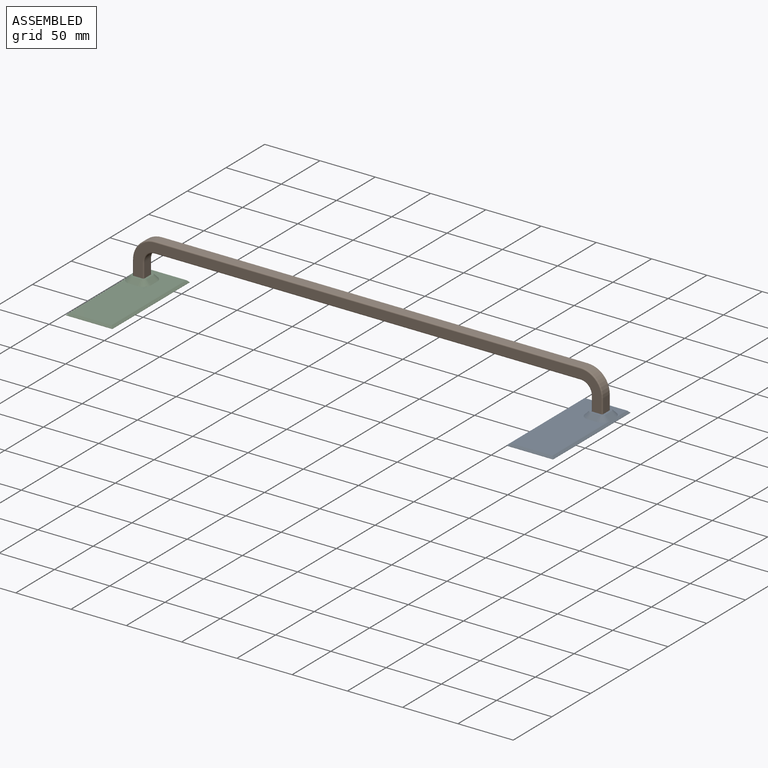
[diagram: assembled view]
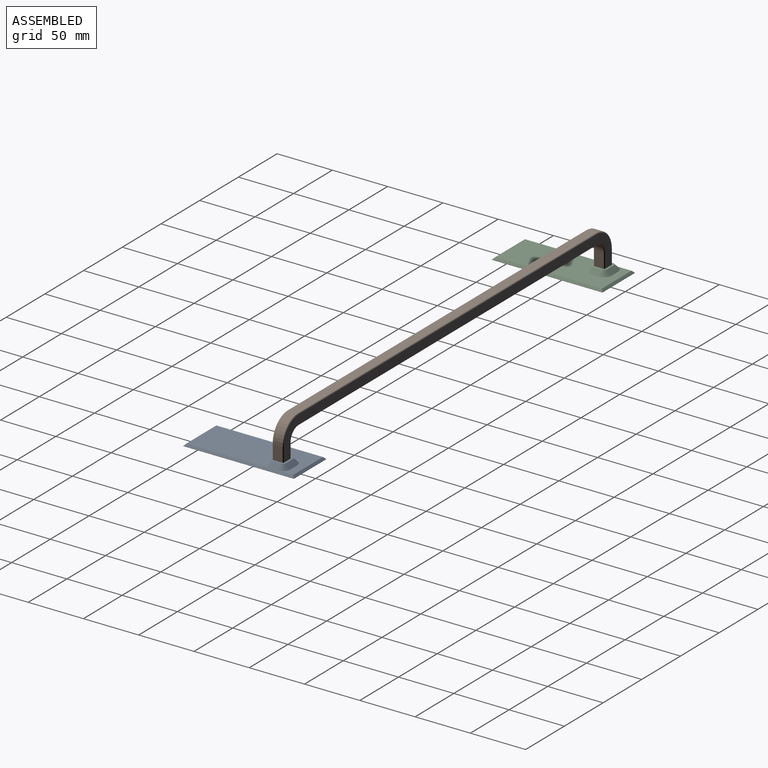
[diagram: assembled view, second angle]
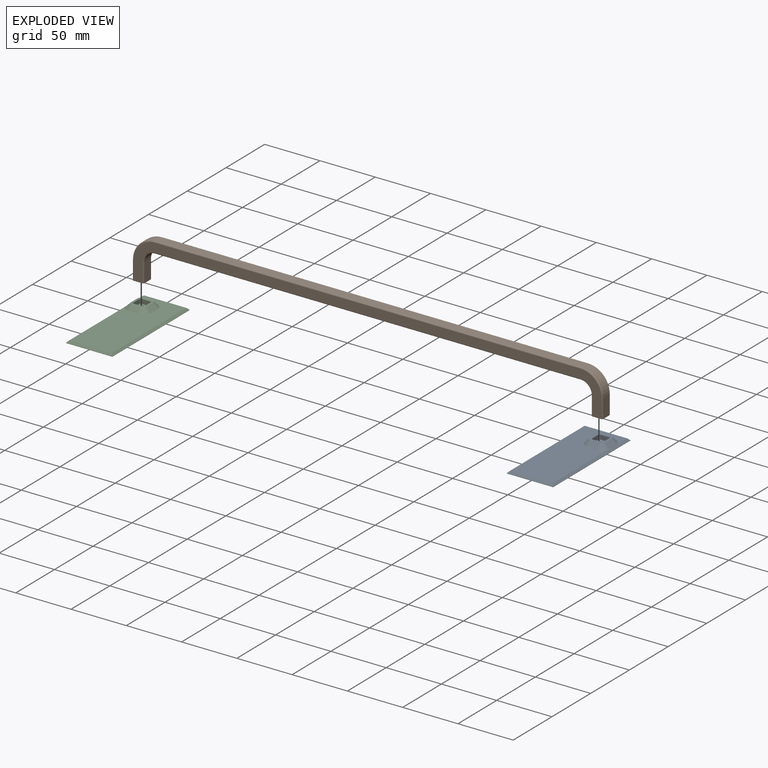
[diagram: exploded view]
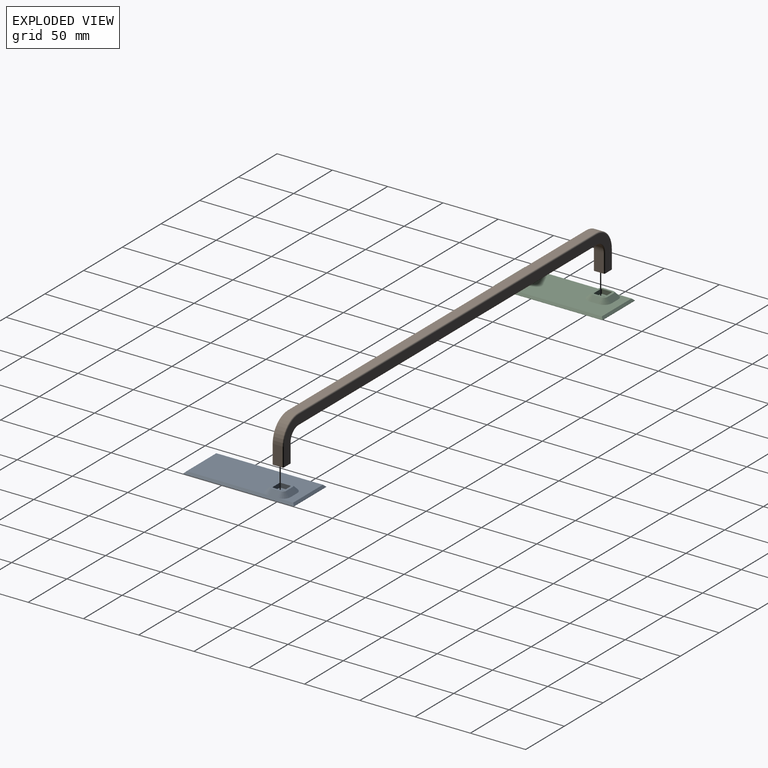
[diagram: exploded view, second angle]
ASSEMBLY  parts=3 mates=2
PART A: 28 faces, bbox 42x100x6 mm
  f0: plane 96.4x38.4mm, normal (0,0,1), area 3254.3mm2, adj f17,f18,f19,f20,f21,f22,f23,f24
  f1: plane 10.2x10.2mm, normal (0,0,1), area 87.2mm2, adj f7,f8,f9,f10,f11,f12,f13,f14
  f2: plane 42x0.2mm, normal (0,1,0), area 8.4mm2, adj f3,f5,f6,f25
  f3: plane 100x0.2mm, normal (1,0,0), area 20mm2, adj f2,f4,f6,f20
  f4: plane 42x0.2mm, normal (0,-1,0), area 8.4mm2, adj f3,f5,f6,f27
  f5: plane 100x0.2mm, normal (-1,0,0), area 20mm2, adj f2,f4,f6,f26
  f6: plane 100x42mm, normal (0,0,-1), area 4143.3mm2, adj f2,f3,f4,f5,f7
  f7: cone r=4.25mm half-angle=45deg, axis (0,0,-1), area 57.8mm2, adj f1,f6
  f8: cylinder r=1.05mm len=4mm, axis (0,0,-1), area 6.6mm2, adj f1,f9,f15,f16
  f9: plane 8.1x4mm, normal (-1,0,0), area 32.4mm2, adj f1,f8,f10,f16
  f10: cylinder r=1.05mm len=4mm, axis (0,0,-1), area 6.6mm2, adj f1,f9,f11,f16
  f11: plane 8.1x4mm, normal (0,-1,0), area 32.4mm2, adj f1,f10,f12,f16
  f12: cylinder r=1.05mm len=4mm, axis (0,0,-1), area 6.6mm2, adj f1,f11,f13,f16
  f13: plane 8.1x4mm, normal (1,0,0), area 32.4mm2, adj f1,f12,f14,f16
  f14: cylinder r=1.05mm len=4mm, axis (0,0,-1), area 6.6mm2, adj f1,f13,f15,f16
  f15: plane 8.1x4mm, normal (0,1,0), area 32.4mm2, adj f1,f8,f14,f16
  f16: plane 14.15x14.1mm, normal (0,0,1), area 88.7mm2, adj f8,f9,f10,f11,f12,f13,f14,f15
  f17: plane 8.15x4mm, normal (0,-0.71,0.71), area 46.1mm2, adj f0,f16,f18,f19
  f18: cone r=7mm half-angle=45deg, axis (0,0,-1), area 44.4mm2, adj f0,f16,f17,f20
  f19: cone r=7mm half-angle=45deg, axis (0,0,-1), area 44.4mm2, adj f0,f16,f17,f21
  f20: plane 100x5.8mm, normal (0.71,0,0.71), area 295.8mm2, adj f0,f3,f16,f18,f22,f25,f27
  f21: plane 8.1x4mm, normal (-0.71,0,0.71), area 45.8mm2, adj f0,f16,f19,f23
  f22: cone r=7mm half-angle=45deg, axis (0,0,-1), area 44.4mm2, adj f0,f16,f20,f24
  f23: cone r=7mm half-angle=45deg, axis (0,0,-1), area 44.4mm2, adj f0,f16,f21,f24
  f24: plane 8.15x4mm, normal (0,0.71,0.71), area 46.1mm2, adj f0,f16,f22,f23
  f25: plane 42x1.8mm, normal (0,0.71,0.71), area 102.3mm2, adj f0,f2,f20,f26
  f26: plane 100x1.8mm, normal (-0.71,0,0.71), area 250mm2, adj f0,f5,f25,f27
  f27: plane 42x1.8mm, normal (0,-0.71,0.71), area 102.3mm2, adj f0,f4,f20,f26
PART B: 38 faces, bbox 428.4x10.1x38.7 mm
  f0: plane 384.9x8.1mm, normal (0,0,-1), area 3117.7mm2, adj f10,f11,f30,f35
  f1: plane 423.1x36.1mm, normal (0,-1,0), area 3777.7mm2, adj f7,f9,f18,f19,f20,f21,f22,f28
  f2: plane 17.1x8.1mm, normal (1,0,0), area 138.5mm2, adj f7,f13,f22,f27
  f3: plane 423.1x36.1mm, normal (0,1,0), area 3777.7mm2, adj f7,f9,f23,f24,f25,f26,f27,f33
  f4: plane 17.1x8.1mm, normal (-1,0,0), area 138.5mm2, adj f9,f12,f18,f23
  f5: plane 385.1x8.1mm, normal (0,0,1), area 3119.3mm2, adj f12,f13,f20,f25
  f6: plane 17x8.1mm, normal (-1,0,0), area 137.7mm2, adj f7,f11,f32,f37
  f7: plane 10.1x10.1mm, normal (0,0,-1), area 88.6mm2, adj f1,f2,f3,f6,f16,f22,f27,f32
  f8: plane 17x8.1mm, normal (1,0,0), area 137.7mm2, adj f9,f10,f28,f33
  f9: plane 10.1x10.1mm, normal (0,0,-1), area 88.6mm2, adj f1,f3,f4,f8,f14,f18,f23,f28
  f10: cylinder r=10mm len=10mm, axis (0,-1,0), area 127.2mm2, adj f0,f8,f29,f34
  f11: cylinder r=10mm len=10mm, axis (0,1,0), area 127.2mm2, adj f0,f6,f31,f36
  f12: cylinder r=20mm len=20mm, axis (0,1,0), area 254.5mm2, adj f4,f5,f19,f24
  f13: cylinder r=20mm len=20mm, axis (0,-1,0), area 254.5mm2, adj f2,f5,f21,f26
  f14: cylinder r=2mm len=10mm, axis (0,0,-1), area 125.7mm2, adj f9,f15
  f15: plane 4x4mm, normal (0,0,-1), area 12.6mm2, adj f14
  f16: cylinder r=2mm len=10mm, axis (0,0,-1), area 125.7mm2, adj f7,f17
  f17: plane 4x4mm, normal (0,0,-1), area 12.6mm2, adj f16
  f18: cylinder r=1mm len=17.1mm, axis (0,0,-1), area 26.9mm2, adj f1,f4,f9,f19
  f19: torus R=19mm, axis (0,-1,0), area 48.5mm2, adj f1,f12,f18,f20
  f20: cylinder r=1mm len=385.1mm, axis (-1,0,0), area 604.9mm2, adj f1,f5,f19,f21
  f21: torus R=19mm, axis (0,-1,0), area 48.5mm2, adj f1,f13,f20,f22
  f22: cylinder r=1mm len=17.1mm, axis (0,0,1), area 26.9mm2, adj f1,f2,f7,f21
  f23: cylinder r=1mm len=17.1mm, axis (0,0,1), area 26.9mm2, adj f3,f4,f9,f24
  f24: torus R=19mm, axis (0,-1,0), area 48.5mm2, adj f3,f12,f23,f25
  f25: cylinder r=1mm len=385.1mm, axis (1,0,0), area 604.9mm2, adj f3,f5,f24,f26
  f26: torus R=19mm, axis (0,-1,0), area 48.5mm2, adj f3,f13,f25,f27
  f27: cylinder r=1mm len=17.1mm, axis (0,0,-1), area 26.9mm2, adj f2,f3,f7,f26
  f28: cylinder r=1mm len=17mm, axis (0,0,1), area 26.7mm2, adj f1,f8,f9,f29
  f29: torus R=11mm, axis (0,-1,0), area 25.6mm2, adj f1,f10,f28,f30
  f30: cylinder r=1mm len=384.9mm, axis (1,0,0), area 604.6mm2, adj f0,f1,f29,f31
  f31: torus R=11mm, axis (0,-1,0), area 25.6mm2, adj f1,f11,f30,f32
  f32: cylinder r=1mm len=17mm, axis (0,0,-1), area 26.7mm2, adj f1,f6,f7,f31
  f33: cylinder r=1mm len=17mm, axis (0,0,-1), area 26.7mm2, adj f3,f8,f9,f34
  f34: torus R=11mm, axis (0,-1,0), area 25.6mm2, adj f3,f10,f33,f35
  f35: cylinder r=1mm len=384.9mm, axis (-1,0,0), area 604.6mm2, adj f0,f3,f34,f36
  f36: torus R=11mm, axis (0,-1,0), area 25.6mm2, adj f3,f11,f35,f37
  f37: cylinder r=1mm len=17mm, axis (0,0,1), area 26.7mm2, adj f3,f6,f7,f36
PART C: 28 faces, bbox 42x100x6 mm
  f0: plane 96.4x38.4mm, normal (0,0,1), area 3254.3mm2, adj f17,f18,f19,f20,f21,f22,f23,f24
  f1: plane 10.2x10.2mm, normal (0,0,1), area 87.2mm2, adj f7,f8,f9,f10,f11,f12,f13,f14
  f2: plane 42x0.2mm, normal (0,1,0), area 8.4mm2, adj f3,f5,f6,f25
  f3: plane 100x0.2mm, normal (-1,0,0), area 20mm2, adj f2,f4,f6,f20
  f4: plane 42x0.2mm, normal (0,-1,0), area 8.4mm2, adj f3,f5,f6,f27
  f5: plane 100x0.2mm, normal (1,0,0), area 20mm2, adj f2,f4,f6,f26
  f6: plane 100x42mm, normal (0,0,-1), area 4143.3mm2, adj f2,f3,f4,f5,f7
  f7: cone r=4.25mm half-angle=45deg, axis (0,0,-1), area 57.8mm2, adj f1,f6
  f8: cylinder r=1.05mm len=4mm, axis (0,0,-1), area 6.6mm2, adj f1,f9,f15,f16
  f9: plane 8.1x4mm, normal (1,0,0), area 32.4mm2, adj f1,f8,f10,f16
  f10: cylinder r=1.05mm len=4mm, axis (0,0,-1), area 6.6mm2, adj f1,f9,f11,f16
  f11: plane 8.1x4mm, normal (0,-1,0), area 32.4mm2, adj f1,f10,f12,f16
  f12: cylinder r=1.05mm len=4mm, axis (0,0,-1), area 6.6mm2, adj f1,f11,f13,f16
  f13: plane 8.1x4mm, normal (-1,0,0), area 32.4mm2, adj f1,f12,f14,f16
  f14: cylinder r=1.05mm len=4mm, axis (0,0,-1), area 6.6mm2, adj f1,f13,f15,f16
  f15: plane 8.1x4mm, normal (0,1,0), area 32.4mm2, adj f1,f8,f14,f16
  f16: plane 14.15x14.1mm, normal (0,0,1), area 88.7mm2, adj f8,f9,f10,f11,f12,f13,f14,f15
  f17: plane 8.15x4mm, normal (0,-0.71,0.71), area 46.1mm2, adj f0,f16,f18,f19
  f18: cone r=7mm half-angle=45deg, axis (0,0,-1), area 44.4mm2, adj f0,f16,f17,f20
  f19: cone r=7mm half-angle=45deg, axis (0,0,-1), area 44.4mm2, adj f0,f16,f17,f21
  f20: plane 100x5.8mm, normal (-0.71,0,0.71), area 295.8mm2, adj f0,f3,f16,f18,f22,f25,f27
  f21: plane 8.1x4mm, normal (0.71,0,0.71), area 45.8mm2, adj f0,f16,f19,f23
  f22: cone r=7mm half-angle=45deg, axis (0,0,-1), area 44.4mm2, adj f0,f16,f20,f24
  f23: cone r=7mm half-angle=45deg, axis (0,0,-1), area 44.4mm2, adj f0,f16,f21,f24
  f24: plane 8.15x4mm, normal (0,0.71,0.71), area 46.1mm2, adj f0,f16,f22,f23
  f25: plane 42x1.8mm, normal (0,0.71,0.71), area 102.3mm2, adj f0,f2,f20,f26
  f26: plane 100x1.8mm, normal (0.71,0,0.71), area 250mm2, adj f0,f5,f25,f27
  f27: plane 42x1.8mm, normal (0,-0.71,0.71), area 102.3mm2, adj f0,f4,f20,f26
PLACE A t=(504.47,42.39,-51.64)mm
PLACE B t=(100.32,42.39,-49.64)mm
PLACE C t=(39.47,42.39,-51.64)mm
MATE fastened A.f7 <-> B.f16  axis (0,0,1) through (454.47,42.39,-49.64)mm
MATE fastened C.f7 <-> B.f14  axis (0,0,1) through (39.47,42.39,-49.64)mm
